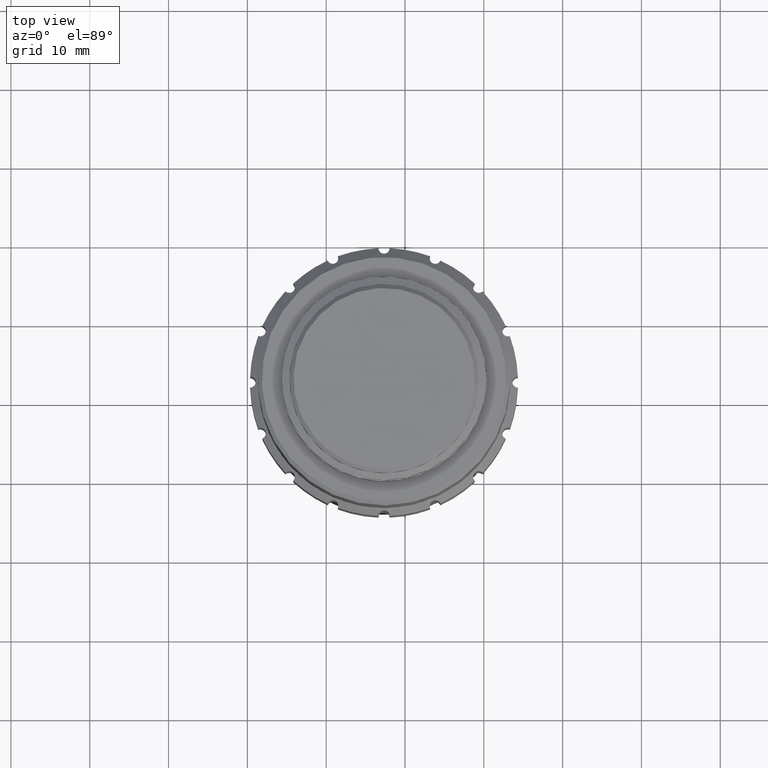
[diagram: clean part render]
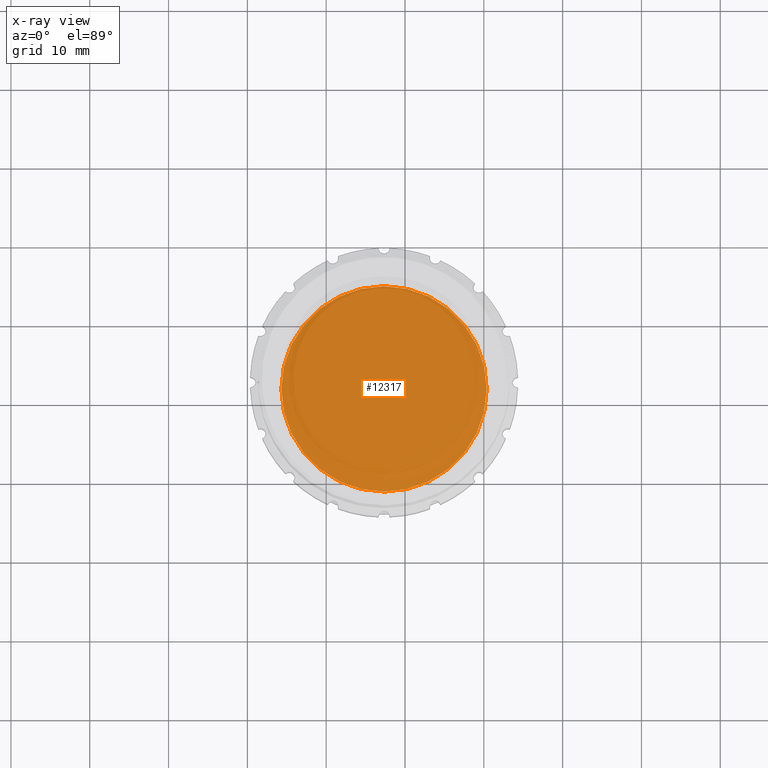
[diagram: x-ray — body ghosted, one internal face saturated and labeled with its STEP entity id]
A machine part, top view, then the same camera in x-ray: the body is ghosted and one INTERNAL B-rep face — a face not visible from any outside direction — is saturated and labeled: STEP entity #12317.
In plain terms, the highlighted planar face has unit normal (0, 0, -1).
Its self-contained STEP definition (entity closure, byte-faithful):
#220 = DIRECTION ( 'NONE',  ( 0.000000000000000000, 1.313240075463129887E-16, -1.000000000000000000 ) ) ;
#1422 = AXIS2_PLACEMENT_3D ( 'NONE', #12959, #220, #15914 ) ;
#3402 = VERTEX_POINT ( 'NONE', #3492 ) ;
#3492 = CARTESIAN_POINT ( 'NONE',  ( -122.6630341068842824, 35.03833184500979314, -44.46615452867705187 ) ) ;
#4470 = CIRCLE ( 'NONE', #17791, 13.02302901257115764 ) ;
#4940 = ORIENTED_EDGE ( 'NONE', *, *, #7014, .T. ) ;
#5499 = CARTESIAN_POINT ( 'NONE',  ( -122.6630341068842824, 22.01530283243863195, -44.46615452867705187 ) ) ;
#7014 = EDGE_CURVE ( 'NONE', #3402, #3402, #4470, .T. ) ;
#7302 = FACE_OUTER_BOUND ( 'NONE', #10024, .T. ) ;
#10024 = EDGE_LOOP ( 'NONE', ( #4940 ) ) ;
#10269 = PLANE ( 'NONE',  #1422 ) ;
#12317 = ADVANCED_FACE ( 'NONE', ( #7302 ), #10269, .F. ) ;
#12959 = CARTESIAN_POINT ( 'NONE',  ( -153.8725490382067846, 78.32088365729966029, -44.46615452867705187 ) ) ;
#15694 = DIRECTION ( 'NONE',  ( -0.000000000000000000, -1.313240075463129887E-16, 1.000000000000000000 ) ) ;
#15914 = DIRECTION ( 'NONE',  ( 0.000000000000000000, 1.000000000000000000, 1.313240075463129887E-16 ) ) ;
#16894 = DIRECTION ( 'NONE',  ( 0.000000000000000000, 1.000000000000000000, 0.000000000000000000 ) ) ;
#17791 = AXIS2_PLACEMENT_3D ( 'NONE', #5499, #15694, #16894 ) ;